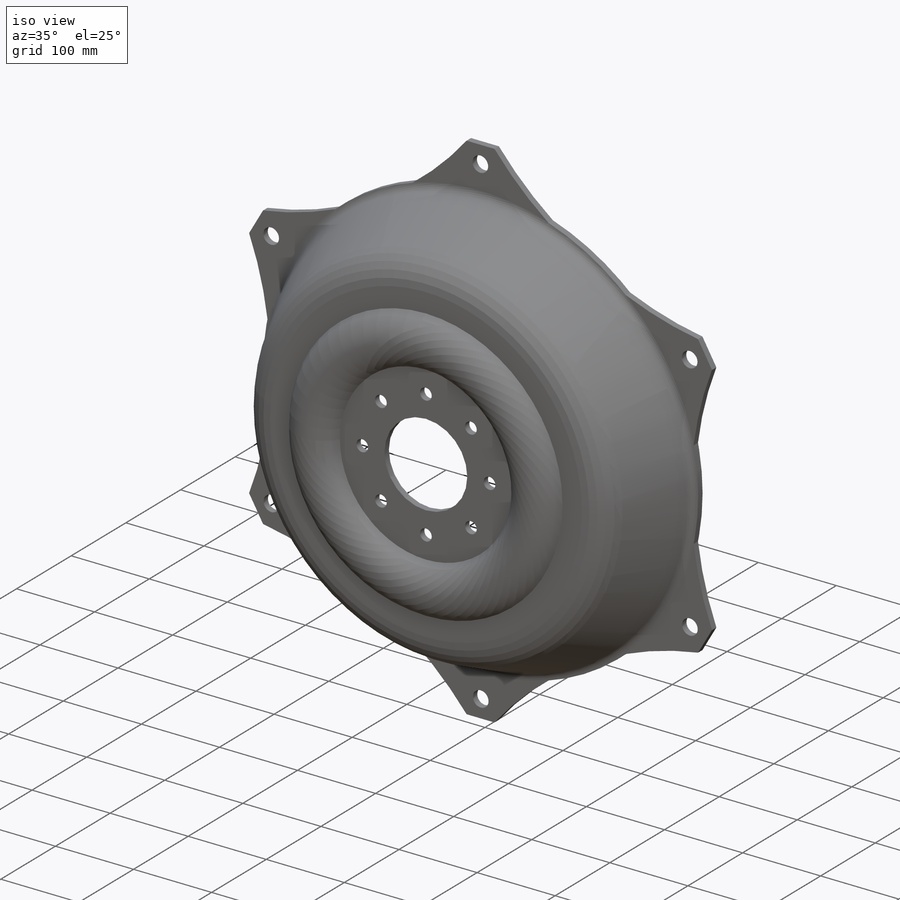
[diagram: iso view]
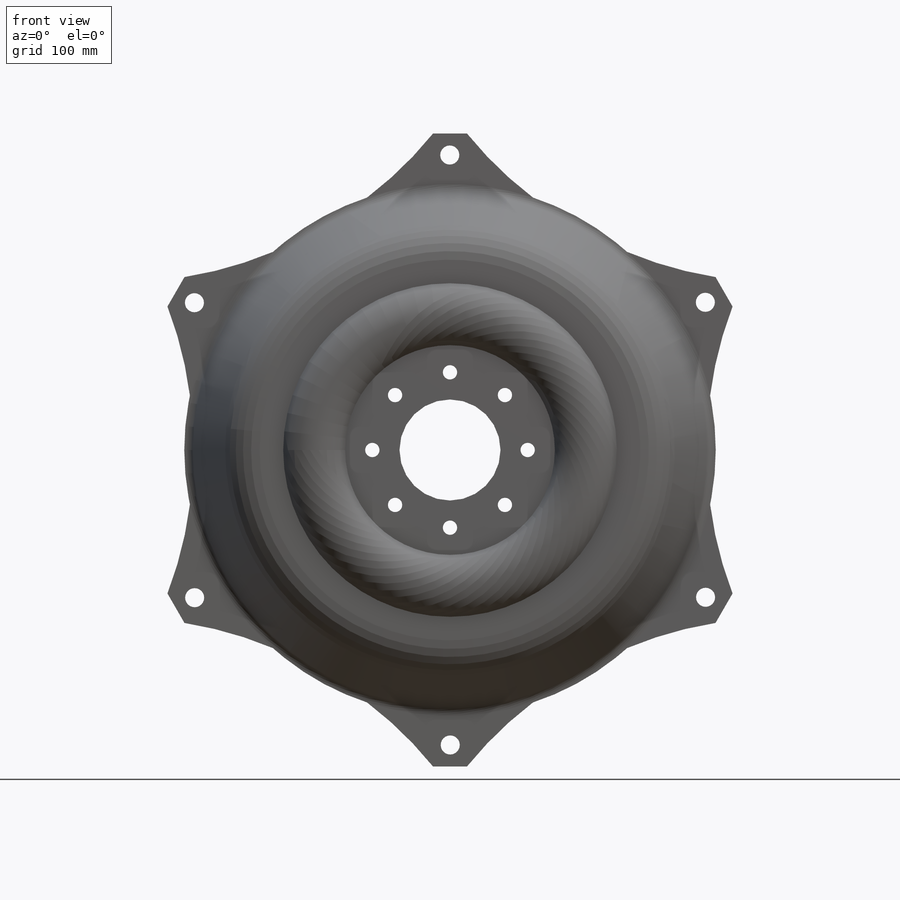
[diagram: front view]
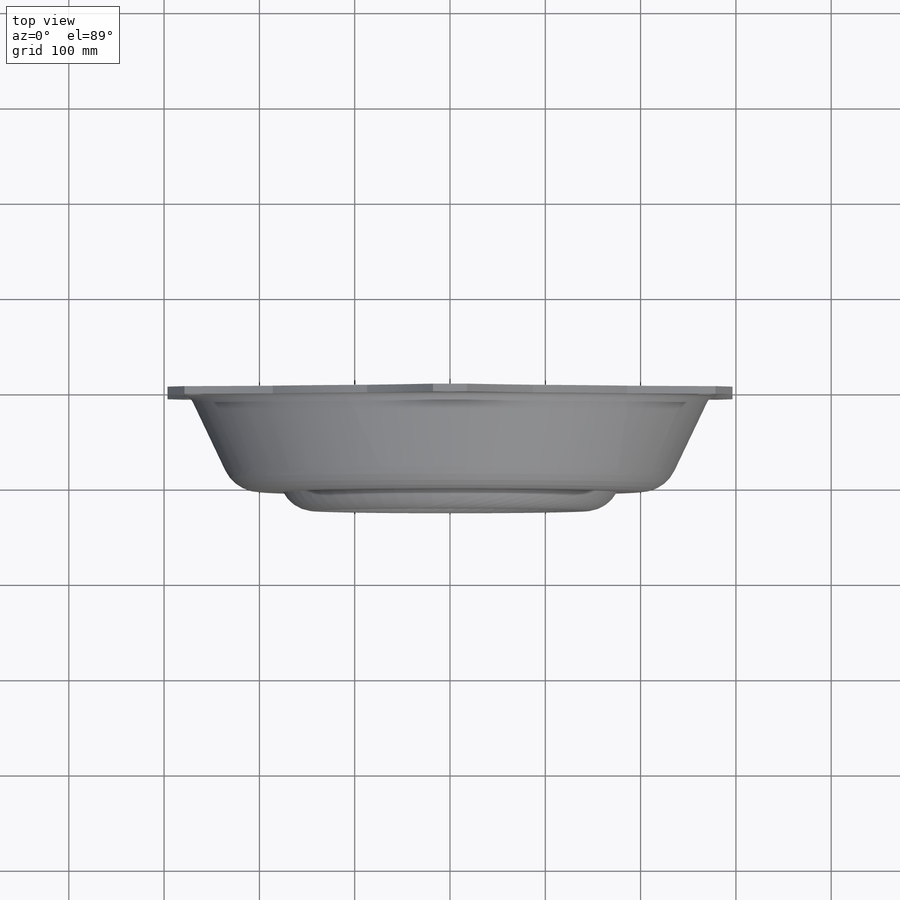
[diagram: top view]
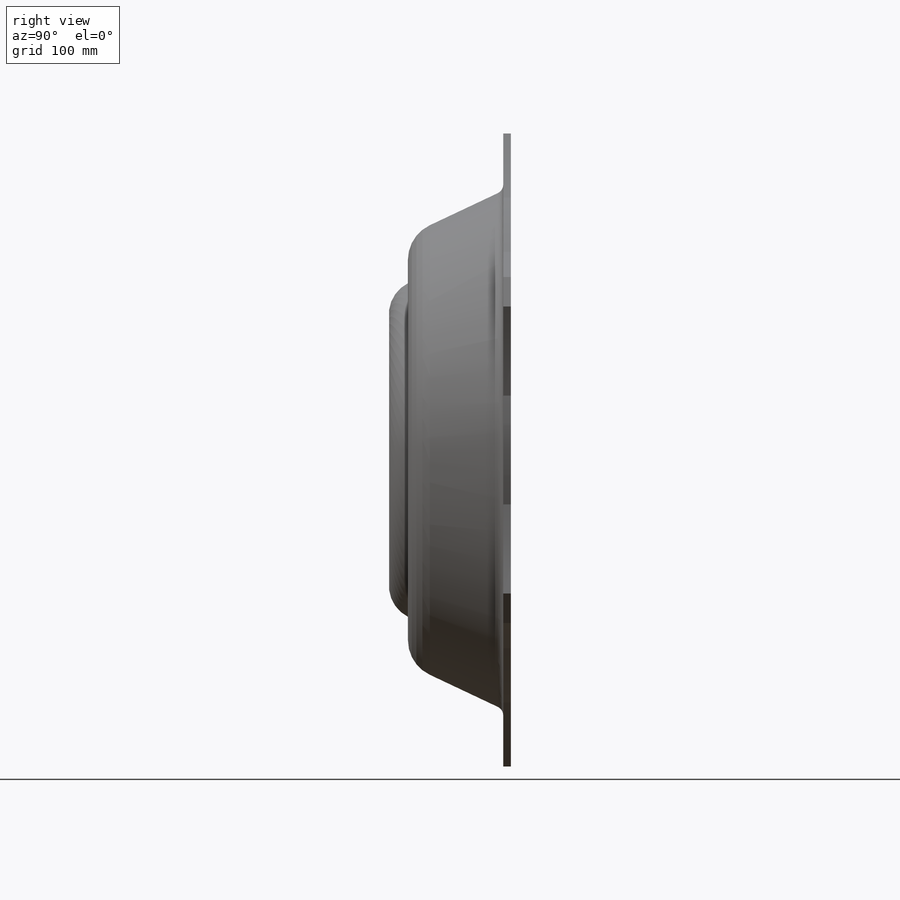
[diagram: right view]
SOLIDWORKS PART (.sldprt)
format: sldprt  version: not decoded by parser v0  size: 312,320 bytes
history: native  units: mm
features: sketch x4, material x1, revolve x1, cut_extrude x1, hole x1 (+13 scaffold rows collapsed)
feature tree (21):
  scaffold x13  (default folders/planes/origin — collapsed)
  material  "Material <not specified>"
  sketch  "Sketch3"  dims[c1.D8=~36.40625mm c1.D9=40.0mm c1.D10=10.0mm c1.D1=53.0mm c1.D2=110.0mm c1.D3=175.0mm c1.D4=50.0mm c1.D5=100.0mm c1.D6=60.0mm c1.D7=~16.40625mm c2.D7=~126.430009deg c3.D7=89.5mm c3.D8=20.0mm c3.D11=8.0mm c3.D13=47.5mm c3.D12=8.0mm]
  revolve  "Revolve1"  Angle=360deg
  sketch  "Sketch5"  dims[c1.D1=400.0mm c1.D2=400.0mm c1.D3=400.0mm c1.D4=20.0mm c2.D1=~21.237028mm c2.D2=~28.376838mm c2.D3=265.0mm c2.D5=20.0mm c3.D3=~269.811599mm c3.D5=23.0mm c3.D6=6.0]
  cut_extrude  "Cut-Extrude2"  [1 undecoded]
  hole  "Ø15.0 (15) Diameter Hole1"  Diameter=15mm Depth=55.6mm
  sketch  "Sketch7"  dims[D1=8.0]
  sketch  "Sketch6"  dims[hole-wizard template sketch: 46 standard entries collapsed; hole parameters kept: c15.Hole Dia.=15.0mm c15.Hole Depth=55.6mm c15.D3=~14.816244mm c15.Drill Angle=118.0deg]
decode coverage: 6 of 7 modeling features carry decoded parameters
note: ~ marks probable driven/reference dimensions
note: 1 parameter value undecoded
note: suppression state not decoded; provenance and decode notes live in map.json
